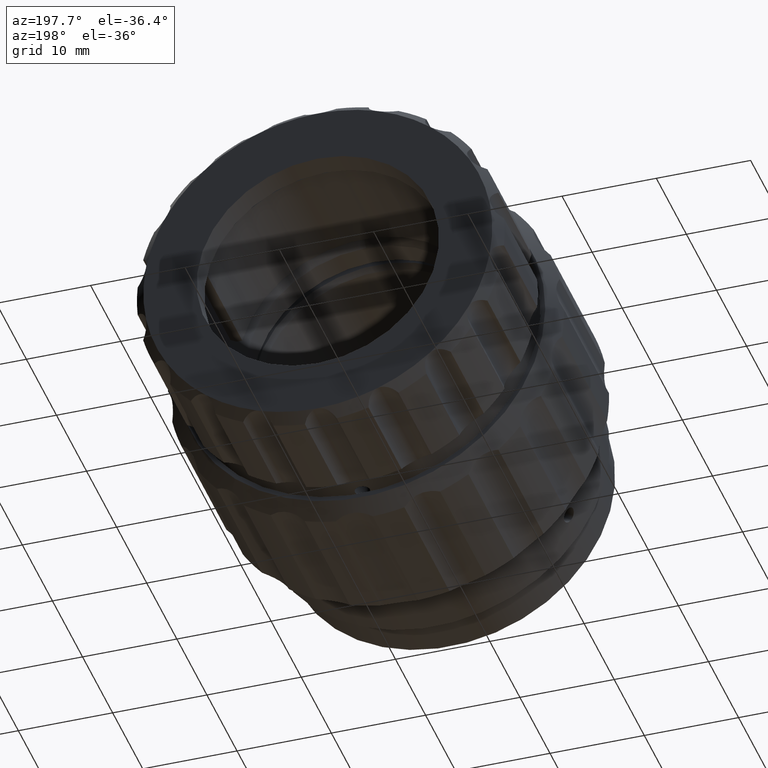
[diagram: clean part render]
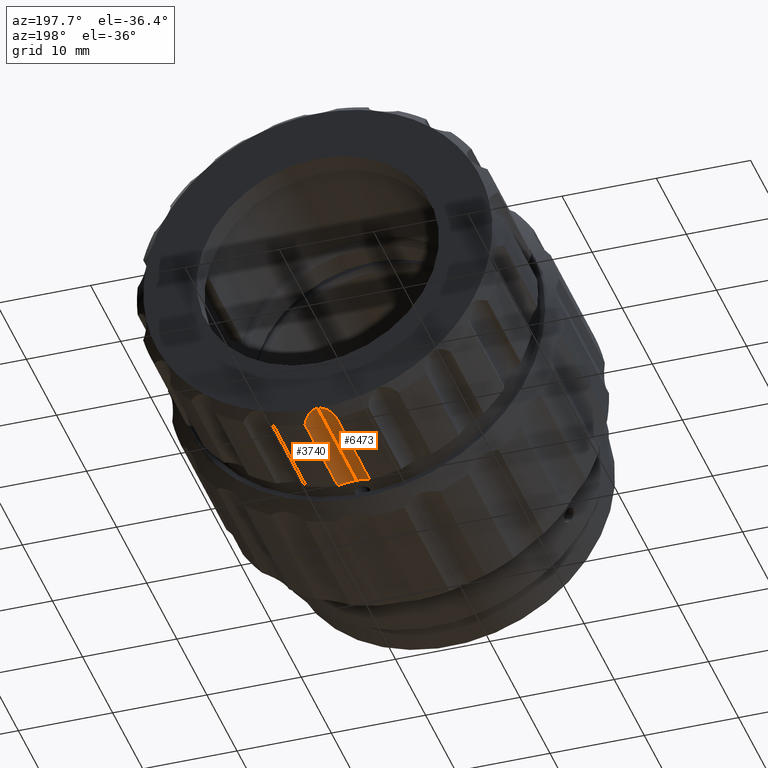
[diagram: same view with one multi-face feature highlighted, each face labeled with its STEP entity id]
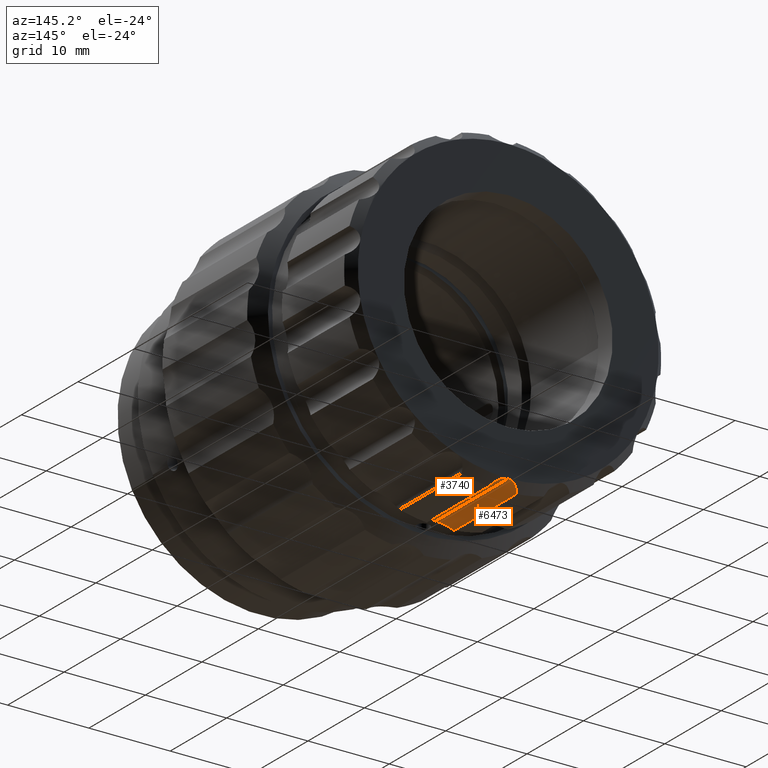
[diagram: same view with one multi-face feature highlighted, each face labeled with its STEP entity id]
A machine part, auxiliary view. The highlighted faces form ONE feature: a constant-radius fillet chain: 2 tangent blend faces with common blend radius 2 mm. The faces share edges in the B-rep.
A second angle (auxiliary view) of the same feature is appended — it is thin or edge-on in the first view.
Their STEP definitions:
[1] entity #3740 (Cylinder):
#151 = B_SPLINE_CURVE_WITH_KNOTS ( 'NONE', 3,
 ( #10048, #1453, #2102, #5350, #4495, #2152, #6025, #6933, #4640, #7687, #7732, #5201, #7540, #7588 ),
 .UNSPECIFIED., .F., .F.,
 ( 4, 2, 2, 2, 2, 2, 4 ),
 ( 2.969550403988742080E-07, 0.0005683349611238804446, 0.001136372967207362021, 0.001420391970249103731, 0.001704410973290845441, 0.001988429976332587584, 0.002272448979374329294 ),
 .UNSPECIFIED. ) ;
#296 = CARTESIAN_POINT ( 'NONE',  ( 5.971701014312830402, -4.418320904396746407, 26.40330644533107218 ) ) ;
#946 = CARTESIAN_POINT ( 'NONE',  ( 7.265408604496474965, -3.974232348476186338, 25.93639999232208027 ) ) ;
#1046 = CARTESIAN_POINT ( 'NONE',  ( 6.343638124849329429, -4.392544022178463514, 26.37660462478677559 ) ) ;
#1097 = CARTESIAN_POINT ( 'NONE',  ( 6.156630968296325612, -4.418320904396746407, 26.40330644533106863 ) ) ;
#1139 = CARTESIAN_POINT ( 'NONE',  ( 5.971701014312827738, 8.451244312994560914, 26.40330644533107218 ) ) ;
#1271 = VERTEX_POINT ( 'NONE', #1139 ) ;
#1323 = ORIENTED_EDGE ( 'NONE', *, *, #5794, .F. ) ;
#1453 = CARTESIAN_POINT ( 'NONE',  ( 7.582259970840570240, 7.578766162221422853, 25.59777844825417858 ) ) ;
#2102 = CARTESIAN_POINT ( 'NONE',  ( 7.491432256847438964, 7.700318131623115292, 25.71220643218075708 ) ) ;
#2152 = CARTESIAN_POINT ( 'NONE',  ( 6.939034673912944484, 8.178924020455406563, 26.15579962440043005 ) ) ;
#2401 = CARTESIAN_POINT ( 'NONE',  ( 7.137117693497577520, -4.069103363047642752, 26.03716265554277243 ) ) ;
#2441 = VECTOR ( 'NONE', #3403, 1000.000000000000000 ) ;
#2511 = CARTESIAN_POINT ( 'NONE',  ( 7.659393101337824916, -3.548755687005437753, 25.47647717703838310 ) ) ;
#2927 = B_SPLINE_CURVE_WITH_KNOTS ( 'NONE', 3,
 ( #296, #1097, #1046, #4198, #9387, #2401, #946, #3222, #4846, #2511 ),
 .UNSPECIFIED., .F., .F.,
 ( 4, 2, 2, 2, 4 ),
 ( 0.002215579625776021785, 0.002768984761719299123, 0.003322389897662576461, 0.003875795033605853798, 0.004429200169549131136 ),
 .UNSPECIFIED. ) ;
#2983 = CARTESIAN_POINT ( 'NONE',  ( 7.659393101337824916, 7.451244312994560026, 25.47647717703838310 ) ) ;
#3222 = CARTESIAN_POINT ( 'NONE',  ( 7.486298624084628983, -3.771268675681458404, 25.71861980464808539 ) ) ;
#3403 = DIRECTION ( 'NONE',  ( -0.000000000000000000, 1.000000000000000000, -0.000000000000000000 ) ) ;
#3464 = DIRECTION ( 'NONE',  ( 0.000000000000000000, 0.000000000000000000, 1.000000000000000000 ) ) ;
#3740 = ADVANCED_FACE ( 'NONE', ( #5547 ), #4878, .F. ) ;
#3864 = EDGE_LOOP ( 'NONE', ( #7302, #8442, #5368, #1323 ) ) ;
#4164 = EDGE_CURVE ( 'NONE', #8729, #9220, #2927, .T. ) ;
#4198 = CARTESIAN_POINT ( 'NONE',  ( 6.689188176356934967, -4.298720746254987013, 26.27879440624665364 ) ) ;
#4495 = CARTESIAN_POINT ( 'NONE',  ( 7.153020801565628695, 8.037271036952427394, 26.02575846833747875 ) ) ;
#4640 = CARTESIAN_POINT ( 'NONE',  ( 6.618581998957049350, 8.334920145221889953, 26.29802039560597393 ) ) ;
#4846 = CARTESIAN_POINT ( 'NONE',  ( 7.580025212751121622, -3.662856997034181550, 25.60129287837470713 ) ) ;
#4878 = CYLINDRICAL_SURFACE ( 'NONE', #5067, 2.000000000000001776 ) ;
#5067 = AXIS2_PLACEMENT_3D ( 'NONE', #6715, #8080, #3464 ) ;
#5096 = DIRECTION ( 'NONE',  ( -0.000000000000000000, 1.000000000000000000, -0.000000000000000000 ) ) ;
#5201 = CARTESIAN_POINT ( 'NONE',  ( 6.163946569368627948, 8.443483672898230097, 26.39630698316002366 ) ) ;
#5350 = CARTESIAN_POINT ( 'NONE',  ( 7.277674957707462866, 7.928863982162116741, 25.92555290510201260 ) ) ;
#5368 = ORIENTED_EDGE ( 'NONE', *, *, #8399, .F. ) ;
#5547 = FACE_OUTER_BOUND ( 'NONE', #3864, .T. ) ;
#5794 = EDGE_CURVE ( 'NONE', #9220, #6603, #5865, .T. ) ;
#5865 = LINE ( 'NONE', #8972, #8947 ) ;
#6025 = CARTESIAN_POINT ( 'NONE',  ( 6.863739138151437658, 8.222333295909072248, 26.19548713931049377 ) ) ;
#6096 = EDGE_CURVE ( 'NONE', #8729, #1271, #9056, .T. ) ;
#6603 = VERTEX_POINT ( 'NONE', #2983 ) ;
#6715 = CARTESIAN_POINT ( 'NONE',  ( 5.971701014312827738, -6.548755687005441750, 24.40330644533106863 ) ) ;
#6933 = CARTESIAN_POINT ( 'NONE',  ( 6.703948504558705501, 8.300213692991317060, 26.26649115632530496 ) ) ;
#7302 = ORIENTED_EDGE ( 'NONE', *, *, #4164, .F. ) ;
#7308 = CARTESIAN_POINT ( 'NONE',  ( 5.971701014312827738, -6.548755687005441750, 26.40330644533107218 ) ) ;
#7540 = CARTESIAN_POINT ( 'NONE',  ( 6.067079559643528519, 8.451244312994568020, 26.40330644533108284 ) ) ;
#7588 = CARTESIAN_POINT ( 'NONE',  ( 5.971701014312827738, 8.451244312994560914, 26.40330644533107218 ) ) ;
#7687 = CARTESIAN_POINT ( 'NONE',  ( 6.442624084374493520, 8.391399552732309530, 26.34923229791239052 ) ) ;
#7732 = CARTESIAN_POINT ( 'NONE',  ( 6.351829733463107530, 8.413419602242473871, 26.36914256619729358 ) ) ;
#8055 = CARTESIAN_POINT ( 'NONE',  ( 7.659393101337824916, -3.548755687005437753, 25.47647717703838310 ) ) ;
#8080 = DIRECTION ( 'NONE',  ( -0.000000000000000000, 1.000000000000000000, -0.000000000000000000 ) ) ;
#8399 = EDGE_CURVE ( 'NONE', #6603, #1271, #151, .T. ) ;
#8442 = ORIENTED_EDGE ( 'NONE', *, *, #6096, .T. ) ;
#8729 = VERTEX_POINT ( 'NONE', #9255 ) ;
#8947 = VECTOR ( 'NONE', #5096, 1000.000000000000000 ) ;
#8972 = CARTESIAN_POINT ( 'NONE',  ( 7.659393101337824916, 0.9512443129945594711, 25.47647717703838310 ) ) ;
#9056 = LINE ( 'NONE', #7308, #2441 ) ;
#9220 = VERTEX_POINT ( 'NONE', #8055 ) ;
#9255 = CARTESIAN_POINT ( 'NONE',  ( 5.971701014312830402, -4.418320904396746407, 26.40330644533107218 ) ) ;
#9387 = CARTESIAN_POINT ( 'NONE',  ( 6.851126042043398812, -4.230324616014238259, 26.20727256817552231 ) ) ;
#10048 = CARTESIAN_POINT ( 'NONE',  ( 7.659393101337824916, 7.451244312994560026, 25.47647717703838310 ) ) ;
[2] entity #6473 (Cylinder):
#273 = EDGE_CURVE ( 'NONE', #1271, #4624, #4869, .T. ) ;
#463 = DIRECTION ( 'NONE',  ( -0.000000000000000000, 1.000000000000000000, -0.000000000000000000 ) ) ;
#607 = CARTESIAN_POINT ( 'NONE',  ( 4.361126009828124594, 7.578739630624238721, 25.59775321088125111 ) ) ;
#1074 = EDGE_CURVE ( 'NONE', #4624, #8548, #4453, .T. ) ;
#1139 = CARTESIAN_POINT ( 'NONE',  ( 5.971701014312827738, 8.451244312994560914, 26.40330644533107218 ) ) ;
#1271 = VERTEX_POINT ( 'NONE', #1139 ) ;
#1821 = DIRECTION ( 'NONE',  ( 0.000000000000000000, 0.000000000000000000, 1.000000000000000000 ) ) ;
#2110 = CARTESIAN_POINT ( 'NONE',  ( 5.971701014312827738, 8.451244312994560914, 26.40330644533107218 ) ) ;
#2441 = VECTOR ( 'NONE', #3403, 1000.000000000000000 ) ;
#3155 = EDGE_LOOP ( 'NONE', ( #7314, #4233, #5214, #5991 ) ) ;
#3403 = DIRECTION ( 'NONE',  ( -0.000000000000000000, 1.000000000000000000, -0.000000000000000000 ) ) ;
#3446 = CARTESIAN_POINT ( 'NONE',  ( 5.971701014312827738, -6.548755687005441750, 24.40330644533106863 ) ) ;
#3681 = CARTESIAN_POINT ( 'NONE',  ( 5.971701014312830402, -4.418320904396746407, 26.40330644533107218 ) ) ;
#3699 = CARTESIAN_POINT ( 'NONE',  ( 4.284008927287830559, 7.451244312994560026, 25.47647717703838310 ) ) ;
#4233 = ORIENTED_EDGE ( 'NONE', *, *, #5856, .F. ) ;
#4453 = LINE ( 'NONE', #9905, #6907 ) ;
#4502 = CARTESIAN_POINT ( 'NONE',  ( 5.240310068546128797, 8.300585463232264871, 26.26682935236017968 ) ) ;
#4511 = B_SPLINE_CURVE_WITH_KNOTS ( 'NONE', 3,
 ( #9313, #6818, #9893, #6014, #8489, #5297, #4582, #10040, #7724, #3681 ),
 .UNSPECIFIED., .F., .F.,
 ( 4, 2, 2, 2, 4 ),
 ( 3.235133247924165843E-07, 0.0005541375414376003856, 0.001107951569550407519, 0.001661765597663214652, 0.002215579625776021785 ),
 .UNSPECIFIED. ) ;
#4582 = CARTESIAN_POINT ( 'NONE',  ( 5.253986418364525512, -4.298633637632979010, 26.27870336994616451 ) ) ;
#4624 = VERTEX_POINT ( 'NONE', #6572 ) ;
#4869 = B_SPLINE_CURVE_WITH_KNOTS ( 'NONE', 3,
 ( #2110, #6033, #5163, #6747, #4502, #8260, #5989, #5209, #7549, #9134, #607, #3699 ),
 .UNSPECIFIED., .F., .F.,
 ( 4, 2, 2, 2, 2, 4 ),
 ( 0.002272448979374329294, 0.002839709063133328583, 0.003123339105012826276, 0.003406969146892323969, 0.003974229230651316752, 0.004541489314410311270 ),
 .UNSPECIFIED. ) ;
#5163 = CARTESIAN_POINT ( 'NONE',  ( 5.589087188073337487, 8.419677107883405398, 26.37487201634429113 ) ) ;
#5209 = CARTESIAN_POINT ( 'NONE',  ( 4.792480753252956305, 8.038822680653719743, 26.02718698223656091 ) ) ;
#5214 = ORIENTED_EDGE ( 'NONE', *, *, #1074, .F. ) ;
#5297 = CARTESIAN_POINT ( 'NONE',  ( 5.092149987826767976, -4.230295088982533258, 26.20724258423378217 ) ) ;
#5856 = EDGE_CURVE ( 'NONE', #8548, #8729, #4511, .T. ) ;
#5989 = CARTESIAN_POINT ( 'NONE',  ( 5.005342202228861836, 8.179487275552764558, 26.15631464607238854 ) ) ;
#5991 = ORIENTED_EDGE ( 'NONE', *, *, #273, .F. ) ;
#6014 = CARTESIAN_POINT ( 'NONE',  ( 4.677159865975970554, -3.973528487452614222, 25.93564747629139333 ) ) ;
#6033 = CARTESIAN_POINT ( 'NONE',  ( 5.781205163564589355, 8.451244312994564467, 26.40330644533107218 ) ) ;
#6096 = EDGE_CURVE ( 'NONE', #8729, #1271, #9056, .T. ) ;
#6473 = ADVANCED_FACE ( 'NONE', ( #8017 ), #8110, .F. ) ;
#6572 = CARTESIAN_POINT ( 'NONE',  ( 4.284008927287830559, 7.451244312994560026, 25.47647717703838310 ) ) ;
#6747 = CARTESIAN_POINT ( 'NONE',  ( 5.325596082428600830, 8.335203144660217944, 26.29827727682262051 ) ) ;
#6818 = CARTESIAN_POINT ( 'NONE',  ( 4.363390817103807606, -3.662877125560095148, 25.60131489701829821 ) ) ;
#6907 = VECTOR ( 'NONE', #8354, 1000.000000000000000 ) ;
#7308 = CARTESIAN_POINT ( 'NONE',  ( 5.971701014312827738, -6.548755687005441750, 26.40330644533107218 ) ) ;
#7314 = ORIENTED_EDGE ( 'NONE', *, *, #6096, .F. ) ;
#7549 = CARTESIAN_POINT ( 'NONE',  ( 4.666775715548344472, 7.929895698864688036, 25.92651257075581483 ) ) ;
#7724 = CARTESIAN_POINT ( 'NONE',  ( 5.786634421897226765, -4.418320904396745519, 26.40330644533106863 ) ) ;
#8017 = FACE_OUTER_BOUND ( 'NONE', #3155, .T. ) ;
#8110 = CYLINDRICAL_SURFACE ( 'NONE', #9444, 2.000000000000001776 ) ;
#8260 = CARTESIAN_POINT ( 'NONE',  ( 5.080418255690077878, 8.222746696284481516, 26.19586478043581934 ) ) ;
#8354 = DIRECTION ( 'NONE',  ( 0.000000000000000000, -1.000000000000000000, 0.000000000000000000 ) ) ;
#8489 = CARTESIAN_POINT ( 'NONE',  ( 4.805612467506239049, -4.068682995440005001, 26.03671793740476303 ) ) ;
#8548 = VERTEX_POINT ( 'NONE', #9424 ) ;
#8729 = VERTEX_POINT ( 'NONE', #9255 ) ;
#9056 = LINE ( 'NONE', #7308, #2441 ) ;
#9134 = CARTESIAN_POINT ( 'NONE',  ( 4.452067671643755276, 7.700511805140816790, 25.71239064420273124 ) ) ;
#9255 = CARTESIAN_POINT ( 'NONE',  ( 5.971701014312830402, -4.418320904396746407, 26.40330644533107218 ) ) ;
#9313 = CARTESIAN_POINT ( 'NONE',  ( 4.284008927287830559, -3.548755687005437753, 25.47647717703838310 ) ) ;
#9424 = CARTESIAN_POINT ( 'NONE',  ( 4.284008927287830559, -3.548755687005437753, 25.47647717703838310 ) ) ;
#9444 = AXIS2_PLACEMENT_3D ( 'NONE', #3446, #463, #1821 ) ;
#9893 = CARTESIAN_POINT ( 'NONE',  ( 4.457026003946652715, -3.771135249618358554, 25.71847389964025155 ) ) ;
#9905 = CARTESIAN_POINT ( 'NONE',  ( 4.284008927287831447, 0.9512443129945594711, 25.47647717703838310 ) ) ;
#10040 = CARTESIAN_POINT ( 'NONE',  ( 5.599441832286628618, -4.392481889549249452, 26.37654007759314823 ) ) ;